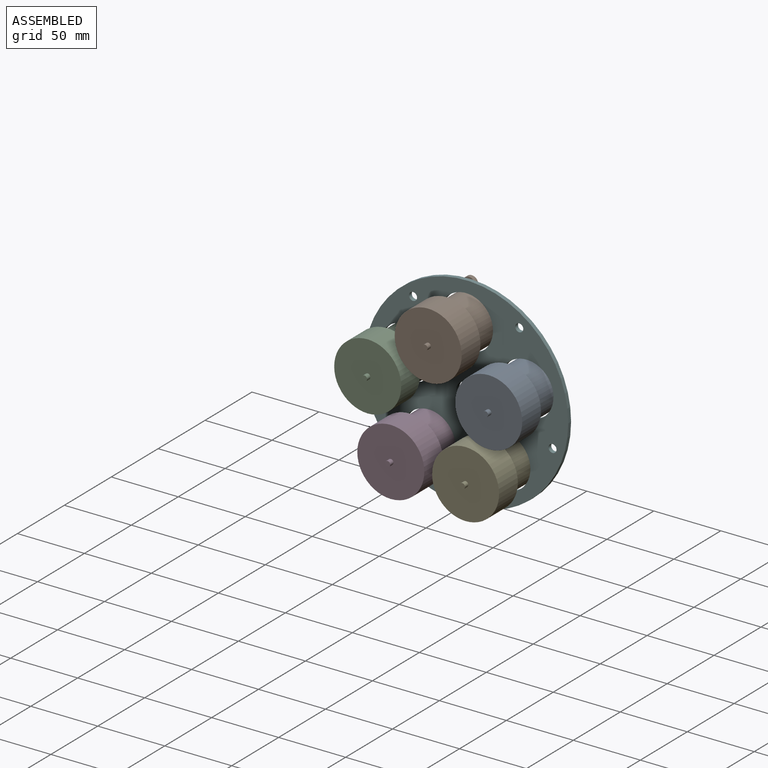
[diagram: assembled view]
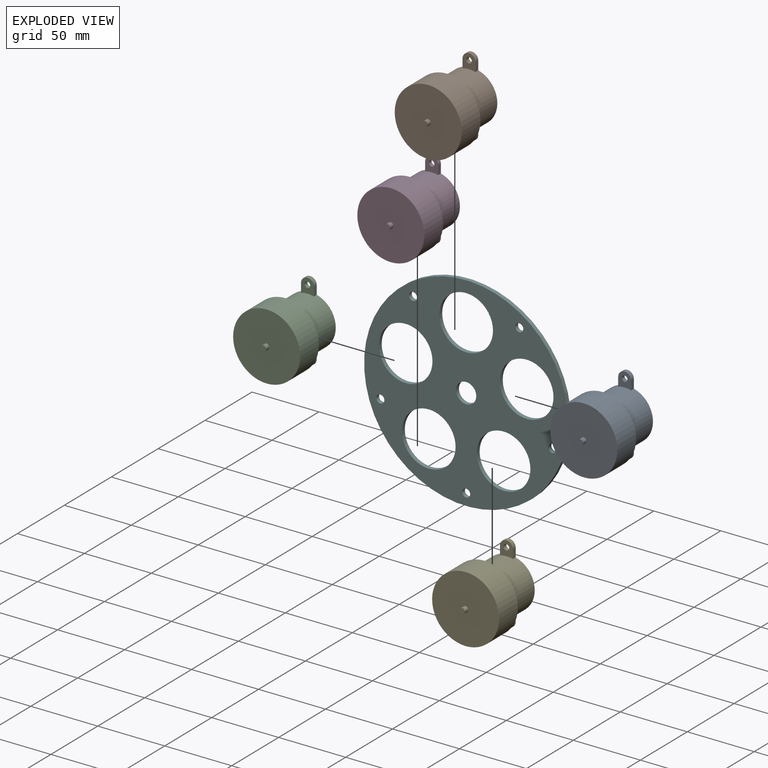
[diagram: exploded view]
GUIDED TOUR — MATED ASSEMBLY WITH SUBASSEMBLIES (Onshape document 40a3dfd7b4c5516ca7b709a6, AutoMate assembly 40a3dfd7b4c5516ca7b709a6_3e66011d5bfe8de211544632_3f967352f34683e22905f1c7_default)

This assembly has 11 component occurrences arranged in 6 top-level units: 1 individual components plus 5 subassemblies (S0, S1, S2, S3, S4). The tour has two levels: first the top level, where each subassembly is treated as one rigid unit; then each subassembly is toured internally in its own section (nesting deeper than one subassembly level is flattened into its subassembly's section).

Components are labeled P0..P10 across the whole record; subassembly units are labeled S0..S4. A mate is a constraint between two units; its type names the relative motion it leaves free:
  CYLINDRICAL — leaves both rotation about and translation along the listed axis free,
  PLANAR — leaves sliding in the plane through the listed point (normal = the listed direction) and rotation about that normal free.
Axis/direction vectors are unit vectors and 'through' points are millimeter coordinates, both in the assembly's world frame.

TOP-LEVEL MATES (between units; each subassembly's internal mates are listed in its own section)
  1. CYLINDRICAL "Cylindrical 2": S3 <-> P9, axis (0.000, 1.000, 0.000) through (-27.92, -31.50, -38.43) mm
  2. CYLINDRICAL "Cylindrical 3": S2 <-> P9, axis (0.000, 1.000, 0.000) through (-45.18, -19.00, 14.68) mm
  3. PLANAR "Planar 5": S0 <-> P9, direction (0.000, -1.000, 0.000) through (45.18, 3.00, -10.32) mm
  4. CYLINDRICAL "Cylindrical 4": S1 <-> P9, axis (0.000, 1.000, 0.000) through (0.00, -31.50, 47.50) mm
  5. PLANAR "Planar 4": P9 <-> S1, direction (0.000, 1.000, 0.000) through (0.00, 3.00, 0.00) mm
  6. CYLINDRICAL "Cylindrical 5": S0 <-> P9, axis (0.000, 1.000, 0.000) through (45.18, -31.50, 14.68) mm
  7. CYLINDRICAL "Cylindrical 1": S4 <-> P9, axis (0.000, -1.000, 0.000) through (27.92, -40.50, -38.43) mm
  8. PLANAR "Planar 2": P9 <-> S3, direction (0.000, 1.000, 0.000) through (0.00, 3.00, 0.00) mm
  9. PLANAR "Planar 1": S4 <-> P9, direction (0.000, -1.000, 0.000) through (27.92, 3.00, -13.43) mm
  10. PLANAR "Planar 3": S2 <-> P9, direction (0.000, -1.000, 0.000) through (-45.18, 3.00, -10.32) mm

TOP-LEVEL ASSEMBLY ORDER
  1. P9 — the base component [order verified]
  2. S4 [order verified]
  3. S3 [order verified]
  4. S1 [order verified]
  5. S0 [order verified]
  6. S2 [order verified]
Order-tag legend:
  [order verified] — this step's position reverses a verified removal order: the component was checked to insert without passing through the ones already placed.

Of the 11 component occurrences, 11 carry the full construction recipe — the FeatureScript program that regenerates the part's solid from scratch; the rest are supplied as boundary geometry only. Each toured unit is shown spotlighted twice — assembled, then exploded with a leader line back to its socket (green = recipe-attached component, orange = geometry-only, blue = subassembly unit; the rest desaturated gray).
NOTE — document 2 of 2 of this assembly tour. The two overview renders and the header above are repeated from document 1; the component sections below continue where the previous document stopped.
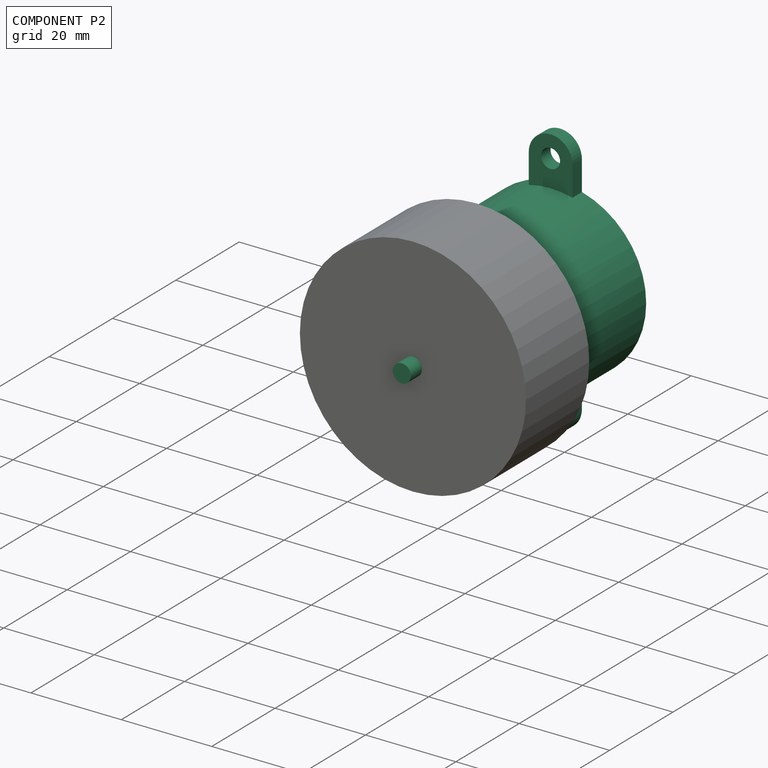
[diagram: component P2 — assembled]
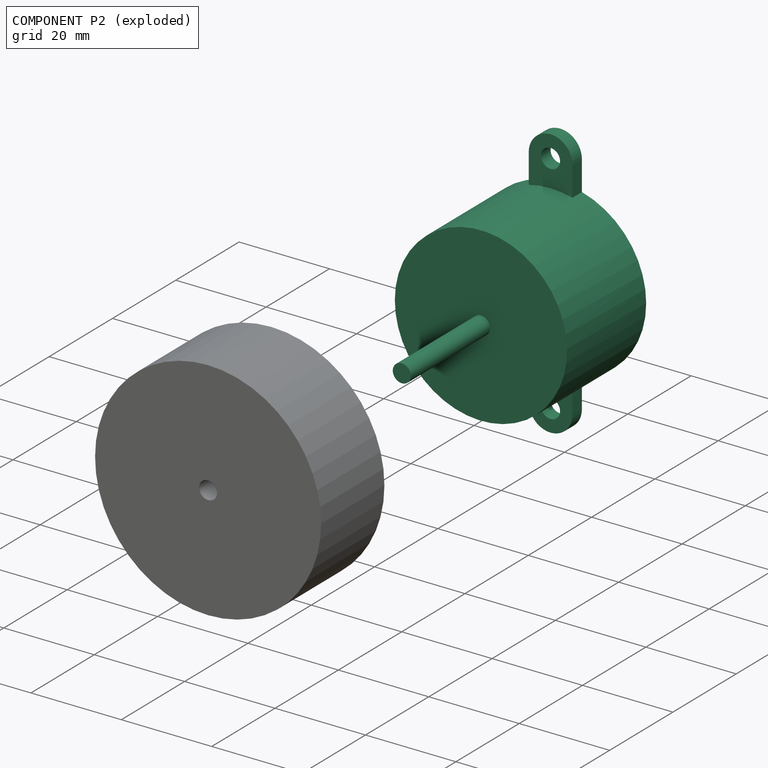
[diagram: component P2 — exploded]
COMPONENT P2 — recipe-attached (CADFS 00167948, mesh-verified: the recipe's output STEP matches this component's geometry to below the mesh-comparison resolution (tessellation chordal tolerance ~0.13 mm)).
Held by: CYLINDRICAL mate "Cylindrical 1" to P4; PLANAR mate "Planar 1" to P4; CYLINDRICAL mate "Cylindrical 1" to P4; PLANAR mate "Planar 1" to P4.
Construction recipe (FeatureScript — the CAD program that rebuilds this solid; sketch coordinates are in the units given by the * unit suffixes, e.g. mm):

FeatureScript 1511;
import(path : "onshape/std/geometry.fs", version : "1511.0");
import(path : "onshape/std/common.fs", version : "1511.0");
const mm = millimeter;
const VERTEX = EntityType.VERTEX;
const EDGE = EntityType.EDGE;
const FACE = EntityType.FACE;
const BODY = EntityType.BODY;
function v(x, y){return vector(x, y);}
function OD(order){return orderDisambiguation(order);}
function OSD(set){return originalSetDisambiguation(set);}
function TD(topology){return topologyDisambiguation(topology);}
function TDD(query){return trueDependencyDisambiguation(query);}
function sQuery(a, b, c) {return sketchEntityQuery(a, b, c);}

annotation { "Feature Type Name" : "Feature", "Feature Type Description" : "" }
export const myFeature = defineFeature(function(context is Context, id is Id, definition is map)
    precondition{}
    {
        {
            var Q0;
            Q0=qCreatedBy(makeId("Front.planeOp"),FACE);
            cPlane(context, id + "F0", {"entities" : qUnion([Q0]), "cplaneType" : CPlaneType.OFFSET, "offset" : 0 * mm, "width" : 150 * mm, "height" : 150 * mm});
        }
        {
            var Q0;
            Q0=qCreatedBy(id+"F0.planeOp",FACE);
            var sketch = newSketch(context, id + "F1", { "sketchPlane" : qUnion([Q0])});
            skCircle(sketch, "E0", {"center": v(0, 0) * mm, "radius": 19.05 * mm});
            skSolve(sketch);
        }
        {
            var Q0;
            Q0 = qSketchRegion(id + "F1", true);
            extrude(context, id + "F2", {"entities" : qUnion([Q0]), "depth" : 25 * mm});
        }
        {
            var Q0;
            Q0=qCreatedBy(id+"F0.planeOp",FACE);
            var sketch = newSketch(context, id + "F3", { "sketchPlane" : qUnion([Q0])});
            skLineSegment(sketch, "E1", {"start": v(0, 55.28) * mm, "end": v(0, -53.48) * mm, "construction": true});
            skLineSegment(sketch, "E2", {"start": v(-52.41, 0) * mm, "end": v(61.28, 0) * mm, "construction": true});
            skCircle(sketch, "E3", {"center": v(0, 25) * mm, "radius": 2.1 * mm});
            skLineSegment(sketch, "E4.left", {"start": v(-4.83, 25) * mm, "end": v(-4.83, 18.43) * mm});
            skLineSegment(sketch, "E4.right", {"start": v(4.83, 25) * mm, "end": v(4.83, 18.43) * mm});
            skArc(sketch, "E5", {"start": v(4.83, 25) * mm, "mid": v(0, 29.83) * mm, "end": v(-4.83, 25) * mm});
            skArc(sketch, "E6.trimOffspring", {"start": v(4.83, 18.43) * mm, "mid": v(0, 19.05) * mm, "end": v(-4.83, 18.43) * mm});
            skCircle(sketch, "E7.MirrorC", {"center": v(0, -25) * mm, "radius": 2.1 * mm});
            skLineSegment(sketch, "E8.MirrorCS", {"start": v(4.83, -25) * mm, "end": v(4.83, -18.43) * mm});
            skLineSegment(sketch, "E9.MirrorCS", {"start": v(-4.83, -25) * mm, "end": v(-4.83, -18.43) * mm});
            skArc(sketch, "E10.MirrorCS", {"start": v(4.83, -25) * mm, "mid": v(0, -29.83) * mm, "end": v(-4.83, -25) * mm});
            skArc(sketch, "E11.MirrorCS", {"start": v(4.83, -18.43) * mm, "mid": v(0, -19.05) * mm, "end": v(-4.83, -18.43) * mm});
            skSolve(sketch);
        }
        {
            var Q0;
            Q0 = qSketchRegion(id + "F3", true);
            extrude(context, id + "F4", {"entities" : qUnion([Q0]), "operationType" : NewBodyOperationType.ADD, "depth" : 3 * mm});
        }
        {
            var Q0;
            Q0=makeQuery(id+"F2.opExtrude","CAP_FACE",FACE,{"disambiguationData":[OSD([sQuery(id+"F1.wireOp",EDGE,"E0")])],"isStart":false});
            var sketch = newSketch(context, id + "F5", { "sketchPlane" : qUnion([Q0])});
            skCircle(sketch, "E12", {"center": v(0, 0) * mm, "radius": 2 * mm});
            skSolve(sketch);
        }
        {
            var Q0;
            Q0 = qSketchRegion(id + "F5", true);
            extrude(context, id + "F6", {"entities" : qUnion([Q0]), "operationType" : NewBodyOperationType.ADD, "depth" : 25 * mm});
        }
    });
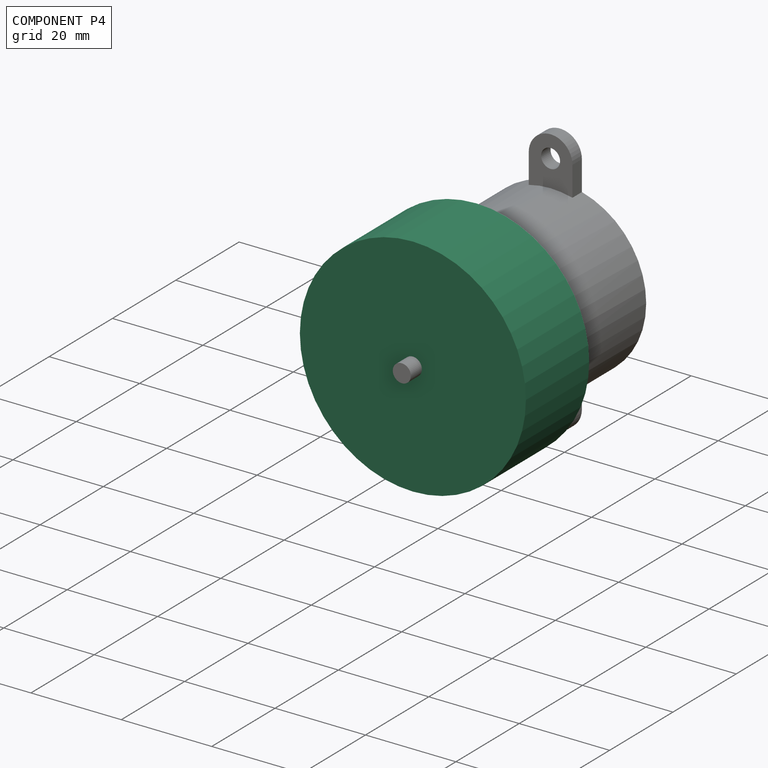
[diagram: component P4 — assembled]
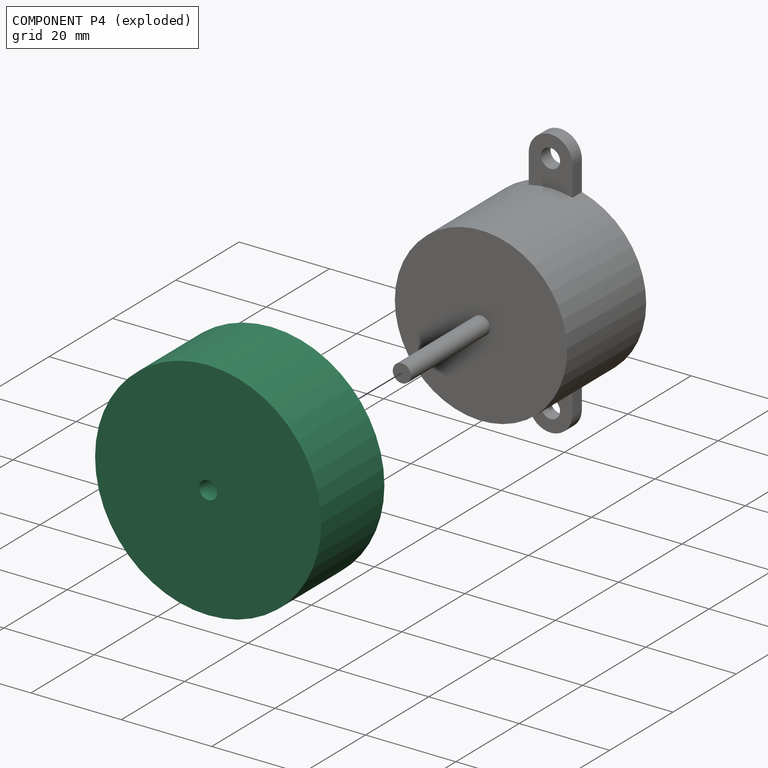
[diagram: component P4 — exploded]
COMPONENT P4 — recipe-attached (CADFS 00167949, mesh-verified: the recipe's output STEP matches this component's geometry to below the mesh-comparison resolution (tessellation chordal tolerance ~0.11 mm)).
Held by: CYLINDRICAL mate "Cylindrical 1" to P2; PLANAR mate "Planar 1" to P2; CYLINDRICAL mate "Cylindrical 1" to P2; PLANAR mate "Planar 1" to P2.
Construction recipe (FeatureScript — the CAD program that rebuilds this solid; sketch coordinates are in the units given by the * unit suffixes, e.g. mm):

FeatureScript 1511;
import(path : "onshape/std/geometry.fs", version : "1511.0");
import(path : "onshape/std/common.fs", version : "1511.0");
const mm = millimeter;
const VERTEX = EntityType.VERTEX;
const EDGE = EntityType.EDGE;
const FACE = EntityType.FACE;
const BODY = EntityType.BODY;
function v(x, y){return vector(x, y);}
function OD(order){return orderDisambiguation(order);}
function OSD(set){return originalSetDisambiguation(set);}
function TD(topology){return topologyDisambiguation(topology);}
function TDD(query){return trueDependencyDisambiguation(query);}
function sQuery(a, b, c) {return sketchEntityQuery(a, b, c);}

annotation { "Feature Type Name" : "Feature", "Feature Type Description" : "" }
export const myFeature = defineFeature(function(context is Context, id is Id, definition is map)
    precondition{}
    {
        {
            var Q0;
            Q0=qCreatedBy(makeId("Front.planeOp"),FACE);
            cPlane(context, id + "F0", {"entities" : qUnion([Q0]), "cplaneType" : CPlaneType.OFFSET, "offset" : 0 * mm, "width" : 150 * mm, "height" : 150 * mm});
        }
        {
            var Q0;
            Q0=qCreatedBy(id+"F0.planeOp",FACE);
            var sketch = newSketch(context, id + "F1", { "sketchPlane" : qUnion([Q0])});
            skCircle(sketch, "E0", {"center": v(0, 0) * mm, "radius": 25 * mm});
            skSolve(sketch);
        }
        {
            var Q0;
            Q0 = qSketchRegion(id + "F1", true);
            extrude(context, id + "F2", {"entities" : qUnion([Q0]), "endBound" : BoundingType.SYMMETRIC, "depth" : 20 * mm});
        }
        {
            var Q0;
            Q0=qCreatedBy(makeId("Front.planeOp"),FACE);
            var sketch = newSketch(context, id + "F3", { "sketchPlane" : qUnion([Q0])});
            skCircle(sketch, "E1", {"center": v(0, 0) * mm, "radius": 1.98 * mm});
            skSolve(sketch);
        }
        {
            var Q0;
            Q0 = qSketchRegion(id + "F3", true);
            extrude(context, id + "F4", {"entities" : qUnion([Q0]), "operationType" : NewBodyOperationType.REMOVE, "endBound" : BoundingType.SYMMETRIC, "depth" : 100 * mm});
        }
    });
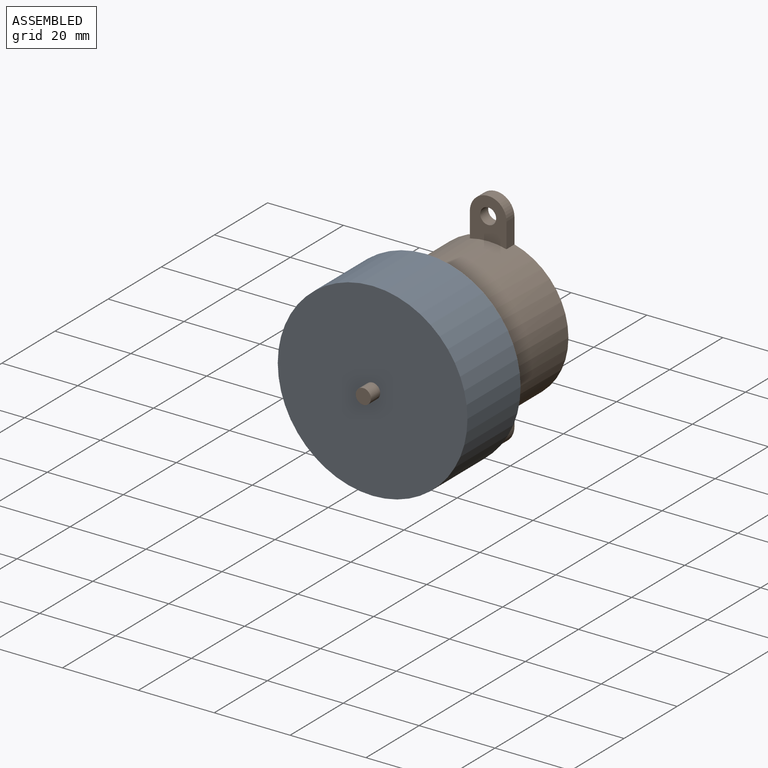
[diagram: subassembly S3 — assembled view]
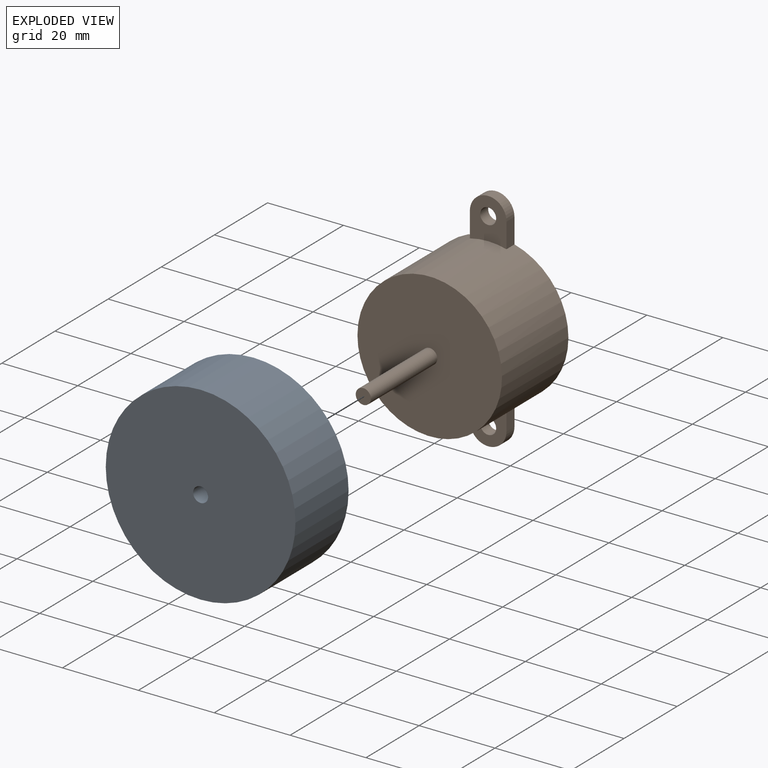
[diagram: subassembly S3 — exploded view]
SUBASSEMBLY S3 TOUR — 2 components, shown here in isolation at its own camera.

INTERNAL MATES
  1. CYLINDRICAL "Cylindrical 1": P6 <-> P8, axis (0.000, -1.000, 0.000) through (-27.92, -40.50, -38.43) mm
  2. PLANAR "Planar 1": P6 <-> P8, direction (0.000, 1.000, 0.000) through (-27.92, -20.50, -38.43) mm
  3. CYLINDRICAL "Cylindrical 1": P6 <-> P8, axis (0.000, -1.000, 0.000) through (-27.92, -40.50, -38.43) mm
  4. PLANAR "Planar 1": P6 <-> P8, direction (0.000, 1.000, 0.000) through (-27.92, -20.50, -38.43) mm

ASSEMBLY ORDER (within the subassembly)
  1. P8 — the base component [order verified]
  2. P6 [order verified]
Order-tag legend:
  [order verified] — this step's position reverses a verified removal order: the component was checked to insert without passing through the ones already placed.
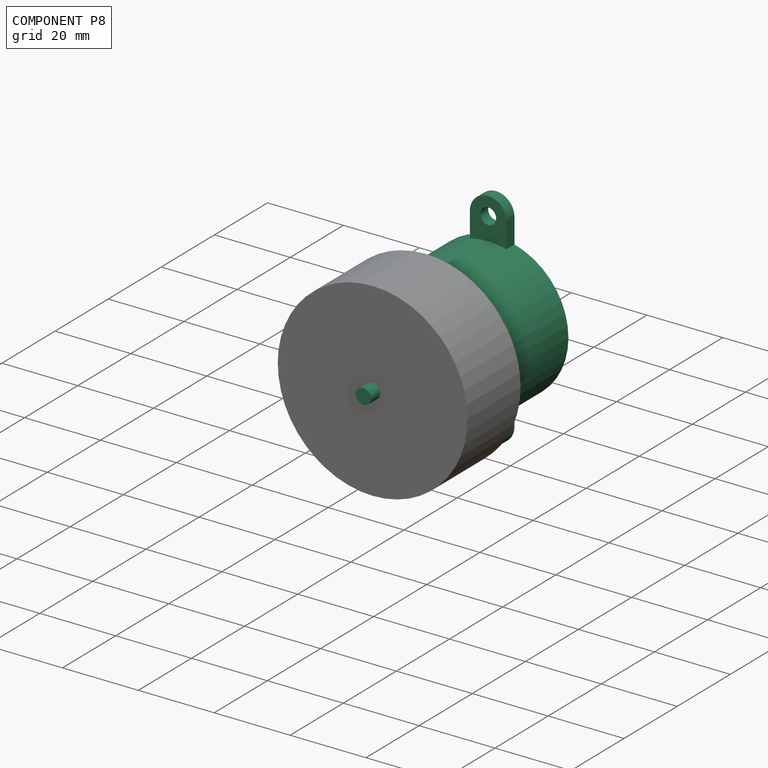
[diagram: component P8 — assembled]
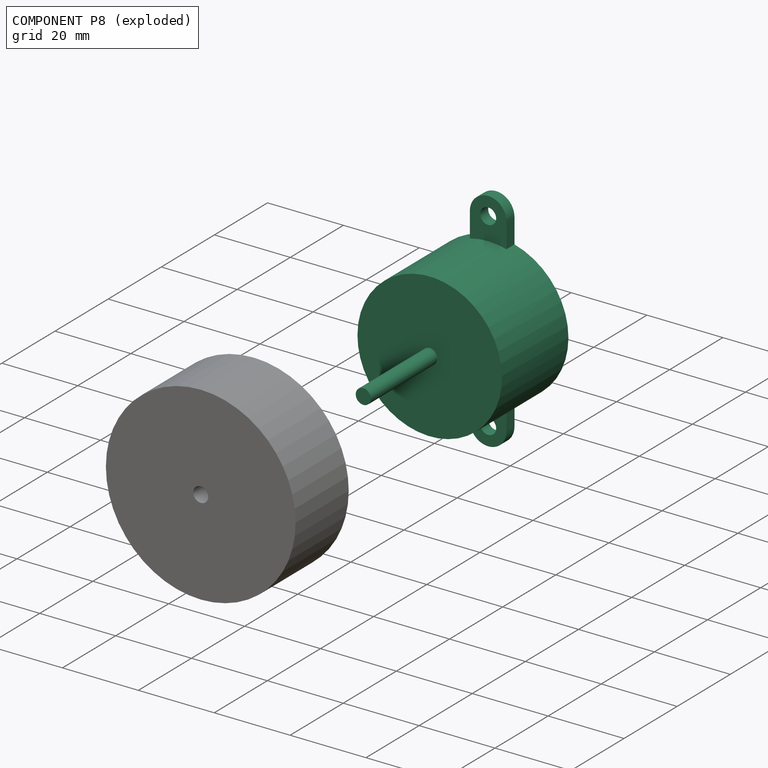
[diagram: component P8 — exploded]
COMPONENT P8 — recipe-attached (CADFS 00167948, mesh-verified: the recipe's output STEP matches this component's geometry to below the mesh-comparison resolution (tessellation chordal tolerance ~0.13 mm)).
Held by: CYLINDRICAL mate "Cylindrical 1" to P6; PLANAR mate "Planar 1" to P6; CYLINDRICAL mate "Cylindrical 1" to P6; PLANAR mate "Planar 1" to P6.
Construction recipe (FeatureScript — the CAD program that rebuilds this solid; sketch coordinates are in the units given by the * unit suffixes, e.g. mm):

FeatureScript 1511;
import(path : "onshape/std/geometry.fs", version : "1511.0");
import(path : "onshape/std/common.fs", version : "1511.0");
const mm = millimeter;
const VERTEX = EntityType.VERTEX;
const EDGE = EntityType.EDGE;
const FACE = EntityType.FACE;
const BODY = EntityType.BODY;
function v(x, y){return vector(x, y);}
function OD(order){return orderDisambiguation(order);}
function OSD(set){return originalSetDisambiguation(set);}
function TD(topology){return topologyDisambiguation(topology);}
function TDD(query){return trueDependencyDisambiguation(query);}
function sQuery(a, b, c) {return sketchEntityQuery(a, b, c);}

annotation { "Feature Type Name" : "Feature", "Feature Type Description" : "" }
export const myFeature = defineFeature(function(context is Context, id is Id, definition is map)
    precondition{}
    {
        {
            var Q0;
            Q0=qCreatedBy(makeId("Front.planeOp"),FACE);
            cPlane(context, id + "F0", {"entities" : qUnion([Q0]), "cplaneType" : CPlaneType.OFFSET, "offset" : 0 * mm, "width" : 150 * mm, "height" : 150 * mm});
        }
        {
            var Q0;
            Q0=qCreatedBy(id+"F0.planeOp",FACE);
            var sketch = newSketch(context, id + "F1", { "sketchPlane" : qUnion([Q0])});
            skCircle(sketch, "E0", {"center": v(0, 0) * mm, "radius": 19.05 * mm});
            skSolve(sketch);
        }
        {
            var Q0;
            Q0 = qSketchRegion(id + "F1", true);
            extrude(context, id + "F2", {"entities" : qUnion([Q0]), "depth" : 25 * mm});
        }
        {
            var Q0;
            Q0=qCreatedBy(id+"F0.planeOp",FACE);
            var sketch = newSketch(context, id + "F3", { "sketchPlane" : qUnion([Q0])});
            skLineSegment(sketch, "E1", {"start": v(0, 55.28) * mm, "end": v(0, -53.48) * mm, "construction": true});
            skLineSegment(sketch, "E2", {"start": v(-52.41, 0) * mm, "end": v(61.28, 0) * mm, "construction": true});
            skCircle(sketch, "E3", {"center": v(0, 25) * mm, "radius": 2.1 * mm});
            skLineSegment(sketch, "E4.left", {"start": v(-4.83, 25) * mm, "end": v(-4.83, 18.43) * mm});
            skLineSegment(sketch, "E4.right", {"start": v(4.83, 25) * mm, "end": v(4.83, 18.43) * mm});
            skArc(sketch, "E5", {"start": v(4.83, 25) * mm, "mid": v(0, 29.83) * mm, "end": v(-4.83, 25) * mm});
            skArc(sketch, "E6.trimOffspring", {"start": v(4.83, 18.43) * mm, "mid": v(0, 19.05) * mm, "end": v(-4.83, 18.43) * mm});
            skCircle(sketch, "E7.MirrorC", {"center": v(0, -25) * mm, "radius": 2.1 * mm});
            skLineSegment(sketch, "E8.MirrorCS", {"start": v(4.83, -25) * mm, "end": v(4.83, -18.43) * mm});
            skLineSegment(sketch, "E9.MirrorCS", {"start": v(-4.83, -25) * mm, "end": v(-4.83, -18.43) * mm});
            skArc(sketch, "E10.MirrorCS", {"start": v(4.83, -25) * mm, "mid": v(0, -29.83) * mm, "end": v(-4.83, -25) * mm});
            skArc(sketch, "E11.MirrorCS", {"start": v(4.83, -18.43) * mm, "mid": v(0, -19.05) * mm, "end": v(-4.83, -18.43) * mm});
            skSolve(sketch);
        }
        {
            var Q0;
            Q0 = qSketchRegion(id + "F3", true);
            extrude(context, id + "F4", {"entities" : qUnion([Q0]), "operationType" : NewBodyOperationType.ADD, "depth" : 3 * mm});
        }
        {
            var Q0;
            Q0=makeQuery(id+"F2.opExtrude","CAP_FACE",FACE,{"disambiguationData":[OSD([sQuery(id+"F1.wireOp",EDGE,"E0")])],"isStart":false});
            var sketch = newSketch(context, id + "F5", { "sketchPlane" : qUnion([Q0])});
            skCircle(sketch, "E12", {"center": v(0, 0) * mm, "radius": 2 * mm});
            skSolve(sketch);
        }
        {
            var Q0;
            Q0 = qSketchRegion(id + "F5", true);
            extrude(context, id + "F6", {"entities" : qUnion([Q0]), "operationType" : NewBodyOperationType.ADD, "depth" : 25 * mm});
        }
    });
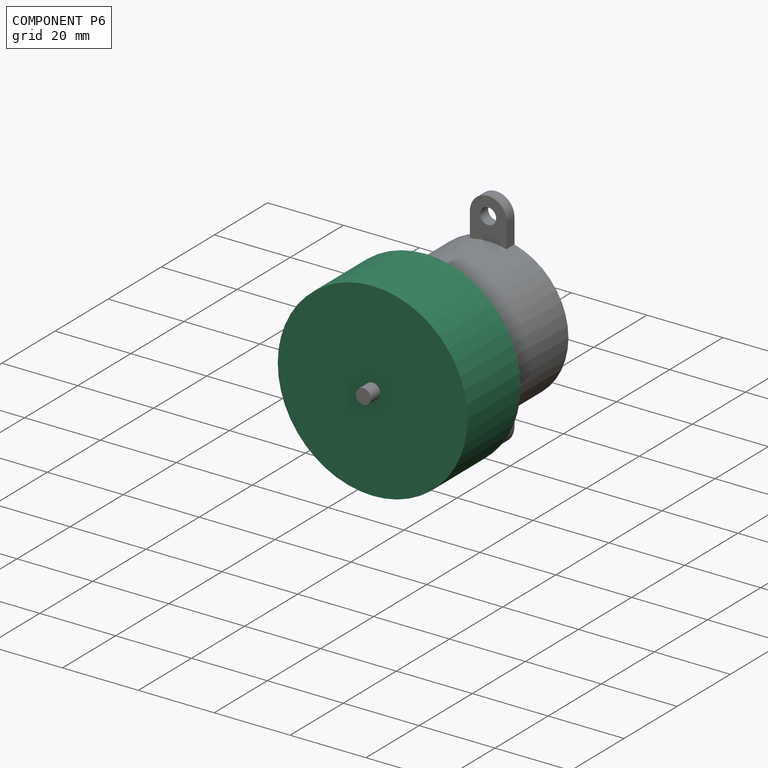
[diagram: component P6 — assembled]
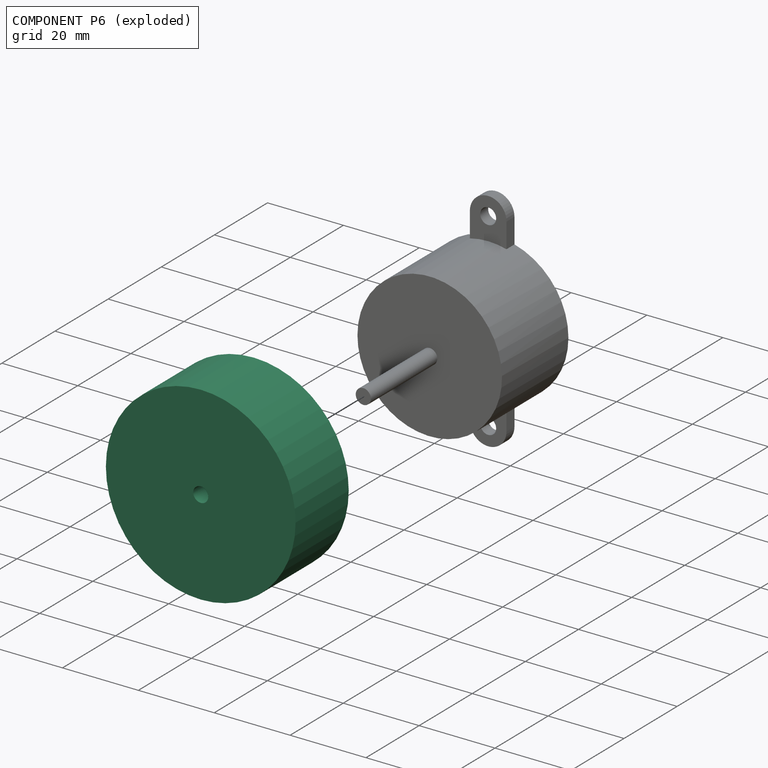
[diagram: component P6 — exploded]
COMPONENT P6 — recipe-attached (CADFS 00167949, mesh-verified: the recipe's output STEP matches this component's geometry to below the mesh-comparison resolution (tessellation chordal tolerance ~0.11 mm)).
Held by: CYLINDRICAL mate "Cylindrical 1" to P8; PLANAR mate "Planar 1" to P8; CYLINDRICAL mate "Cylindrical 1" to P8; PLANAR mate "Planar 1" to P8.
Construction recipe (FeatureScript — the CAD program that rebuilds this solid; sketch coordinates are in the units given by the * unit suffixes, e.g. mm):

FeatureScript 1511;
import(path : "onshape/std/geometry.fs", version : "1511.0");
import(path : "onshape/std/common.fs", version : "1511.0");
const mm = millimeter;
const VERTEX = EntityType.VERTEX;
const EDGE = EntityType.EDGE;
const FACE = EntityType.FACE;
const BODY = EntityType.BODY;
function v(x, y){return vector(x, y);}
function OD(order){return orderDisambiguation(order);}
function OSD(set){return originalSetDisambiguation(set);}
function TD(topology){return topologyDisambiguation(topology);}
function TDD(query){return trueDependencyDisambiguation(query);}
function sQuery(a, b, c) {return sketchEntityQuery(a, b, c);}

annotation { "Feature Type Name" : "Feature", "Feature Type Description" : "" }
export const myFeature = defineFeature(function(context is Context, id is Id, definition is map)
    precondition{}
    {
        {
            var Q0;
            Q0=qCreatedBy(makeId("Front.planeOp"),FACE);
            cPlane(context, id + "F0", {"entities" : qUnion([Q0]), "cplaneType" : CPlaneType.OFFSET, "offset" : 0 * mm, "width" : 150 * mm, "height" : 150 * mm});
        }
        {
            var Q0;
            Q0=qCreatedBy(id+"F0.planeOp",FACE);
            var sketch = newSketch(context, id + "F1", { "sketchPlane" : qUnion([Q0])});
            skCircle(sketch, "E0", {"center": v(0, 0) * mm, "radius": 25 * mm});
            skSolve(sketch);
        }
        {
            var Q0;
            Q0 = qSketchRegion(id + "F1", true);
            extrude(context, id + "F2", {"entities" : qUnion([Q0]), "endBound" : BoundingType.SYMMETRIC, "depth" : 20 * mm});
        }
        {
            var Q0;
            Q0=qCreatedBy(makeId("Front.planeOp"),FACE);
            var sketch = newSketch(context, id + "F3", { "sketchPlane" : qUnion([Q0])});
            skCircle(sketch, "E1", {"center": v(0, 0) * mm, "radius": 1.98 * mm});
            skSolve(sketch);
        }
        {
            var Q0;
            Q0 = qSketchRegion(id + "F3", true);
            extrude(context, id + "F4", {"entities" : qUnion([Q0]), "operationType" : NewBodyOperationType.REMOVE, "endBound" : BoundingType.SYMMETRIC, "depth" : 100 * mm});
        }
    });
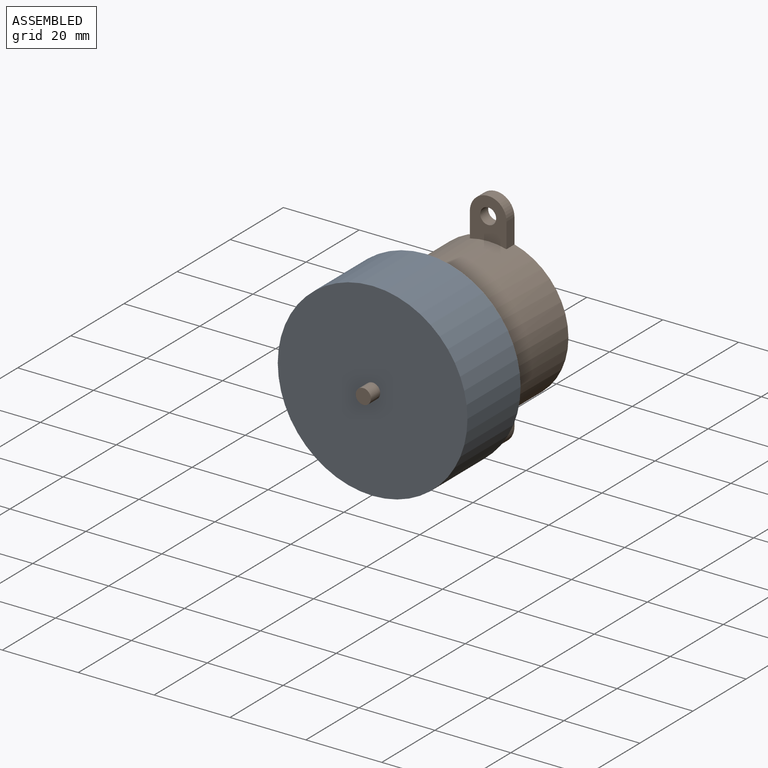
[diagram: subassembly S4 — assembled view]
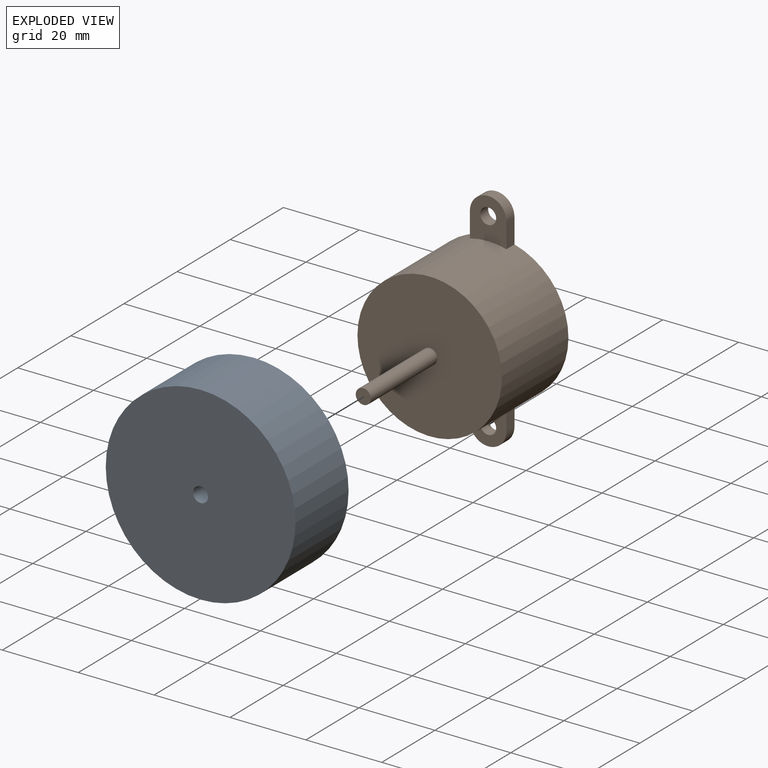
[diagram: subassembly S4 — exploded view]
SUBASSEMBLY S4 TOUR — 2 components, shown here in isolation at its own camera.

INTERNAL MATES
  1. CYLINDRICAL "Cylindrical 1": P7 <-> P10, axis (0.000, -1.000, 0.000) through (27.92, -40.50, -38.43) mm
  2. PLANAR "Planar 1": P7 <-> P10, direction (0.000, 1.000, 0.000) through (27.92, -20.50, -38.43) mm
  3. CYLINDRICAL "Cylindrical 1": P7 <-> P10, axis (0.000, -1.000, 0.000) through (27.92, -40.50, -38.43) mm
  4. PLANAR "Planar 1": P7 <-> P10, direction (0.000, 1.000, 0.000) through (27.92, -20.50, -38.43) mm

ASSEMBLY ORDER (within the subassembly)
  1. P10 — the base component [order verified]
  2. P7 [order verified]
Order-tag legend:
  [order verified] — this step's position reverses a verified removal order: the component was checked to insert without passing through the ones already placed.
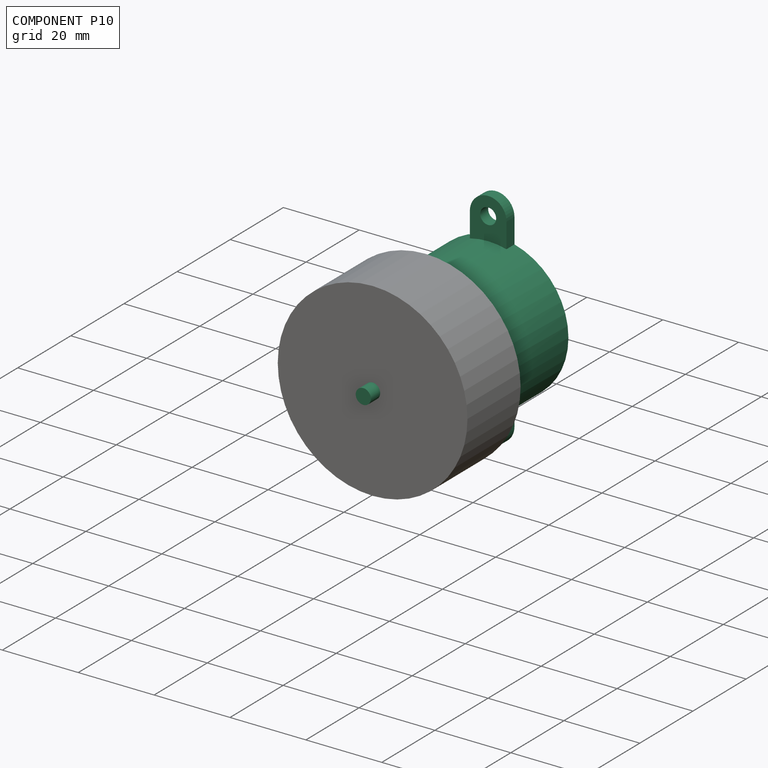
[diagram: component P10 — assembled]
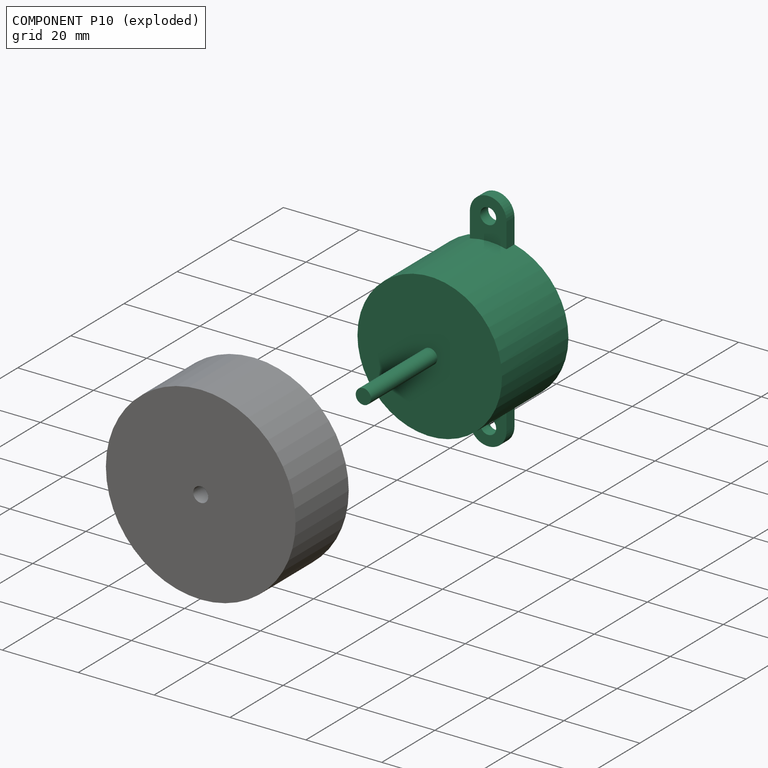
[diagram: component P10 — exploded]
COMPONENT P10 — recipe-attached (CADFS 00167948, mesh-verified: the recipe's output STEP matches this component's geometry to below the mesh-comparison resolution (tessellation chordal tolerance ~0.13 mm)).
Held by: CYLINDRICAL mate "Cylindrical 1" to P7; PLANAR mate "Planar 1" to P7; CYLINDRICAL mate "Cylindrical 1" to P7; PLANAR mate "Planar 1" to P7.
Construction recipe (FeatureScript — the CAD program that rebuilds this solid; sketch coordinates are in the units given by the * unit suffixes, e.g. mm):

FeatureScript 1511;
import(path : "onshape/std/geometry.fs", version : "1511.0");
import(path : "onshape/std/common.fs", version : "1511.0");
const mm = millimeter;
const VERTEX = EntityType.VERTEX;
const EDGE = EntityType.EDGE;
const FACE = EntityType.FACE;
const BODY = EntityType.BODY;
function v(x, y){return vector(x, y);}
function OD(order){return orderDisambiguation(order);}
function OSD(set){return originalSetDisambiguation(set);}
function TD(topology){return topologyDisambiguation(topology);}
function TDD(query){return trueDependencyDisambiguation(query);}
function sQuery(a, b, c) {return sketchEntityQuery(a, b, c);}

annotation { "Feature Type Name" : "Feature", "Feature Type Description" : "" }
export const myFeature = defineFeature(function(context is Context, id is Id, definition is map)
    precondition{}
    {
        {
            var Q0;
            Q0=qCreatedBy(makeId("Front.planeOp"),FACE);
            cPlane(context, id + "F0", {"entities" : qUnion([Q0]), "cplaneType" : CPlaneType.OFFSET, "offset" : 0 * mm, "width" : 150 * mm, "height" : 150 * mm});
        }
        {
            var Q0;
            Q0=qCreatedBy(id+"F0.planeOp",FACE);
            var sketch = newSketch(context, id + "F1", { "sketchPlane" : qUnion([Q0])});
            skCircle(sketch, "E0", {"center": v(0, 0) * mm, "radius": 19.05 * mm});
            skSolve(sketch);
        }
        {
            var Q0;
            Q0 = qSketchRegion(id + "F1", true);
            extrude(context, id + "F2", {"entities" : qUnion([Q0]), "depth" : 25 * mm});
        }
        {
            var Q0;
            Q0=qCreatedBy(id+"F0.planeOp",FACE);
            var sketch = newSketch(context, id + "F3", { "sketchPlane" : qUnion([Q0])});
            skLineSegment(sketch, "E1", {"start": v(0, 55.28) * mm, "end": v(0, -53.48) * mm, "construction": true});
            skLineSegment(sketch, "E2", {"start": v(-52.41, 0) * mm, "end": v(61.28, 0) * mm, "construction": true});
            skCircle(sketch, "E3", {"center": v(0, 25) * mm, "radius": 2.1 * mm});
            skLineSegment(sketch, "E4.left", {"start": v(-4.83, 25) * mm, "end": v(-4.83, 18.43) * mm});
            skLineSegment(sketch, "E4.right", {"start": v(4.83, 25) * mm, "end": v(4.83, 18.43) * mm});
            skArc(sketch, "E5", {"start": v(4.83, 25) * mm, "mid": v(0, 29.83) * mm, "end": v(-4.83, 25) * mm});
            skArc(sketch, "E6.trimOffspring", {"start": v(4.83, 18.43) * mm, "mid": v(0, 19.05) * mm, "end": v(-4.83, 18.43) * mm});
            skCircle(sketch, "E7.MirrorC", {"center": v(0, -25) * mm, "radius": 2.1 * mm});
            skLineSegment(sketch, "E8.MirrorCS", {"start": v(4.83, -25) * mm, "end": v(4.83, -18.43) * mm});
            skLineSegment(sketch, "E9.MirrorCS", {"start": v(-4.83, -25) * mm, "end": v(-4.83, -18.43) * mm});
            skArc(sketch, "E10.MirrorCS", {"start": v(4.83, -25) * mm, "mid": v(0, -29.83) * mm, "end": v(-4.83, -25) * mm});
            skArc(sketch, "E11.MirrorCS", {"start": v(4.83, -18.43) * mm, "mid": v(0, -19.05) * mm, "end": v(-4.83, -18.43) * mm});
            skSolve(sketch);
        }
        {
            var Q0;
            Q0 = qSketchRegion(id + "F3", true);
            extrude(context, id + "F4", {"entities" : qUnion([Q0]), "operationType" : NewBodyOperationType.ADD, "depth" : 3 * mm});
        }
        {
            var Q0;
            Q0=makeQuery(id+"F2.opExtrude","CAP_FACE",FACE,{"disambiguationData":[OSD([sQuery(id+"F1.wireOp",EDGE,"E0")])],"isStart":false});
            var sketch = newSketch(context, id + "F5", { "sketchPlane" : qUnion([Q0])});
            skCircle(sketch, "E12", {"center": v(0, 0) * mm, "radius": 2 * mm});
            skSolve(sketch);
        }
        {
            var Q0;
            Q0 = qSketchRegion(id + "F5", true);
            extrude(context, id + "F6", {"entities" : qUnion([Q0]), "operationType" : NewBodyOperationType.ADD, "depth" : 25 * mm});
        }
    });
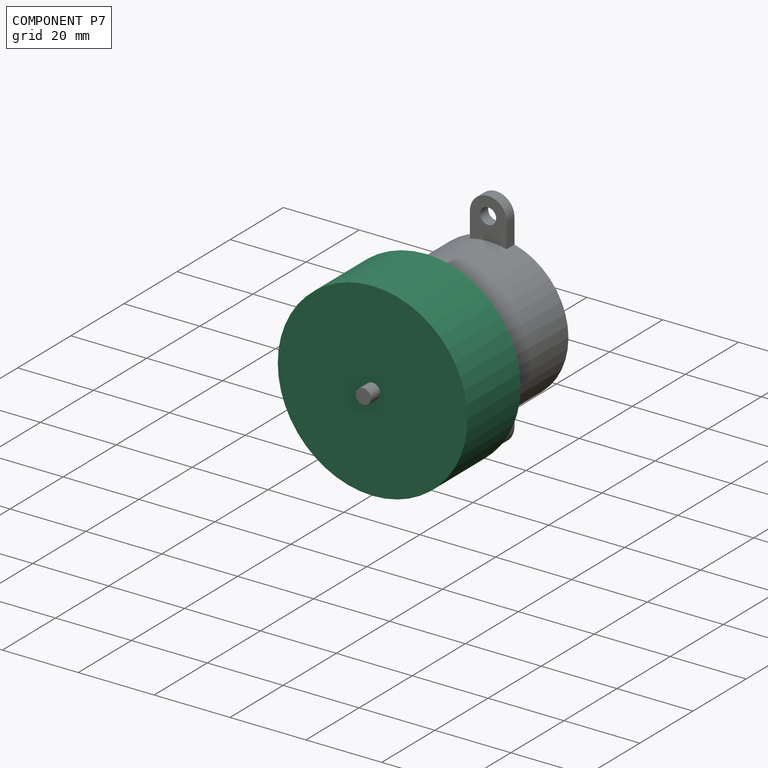
[diagram: component P7 — assembled]
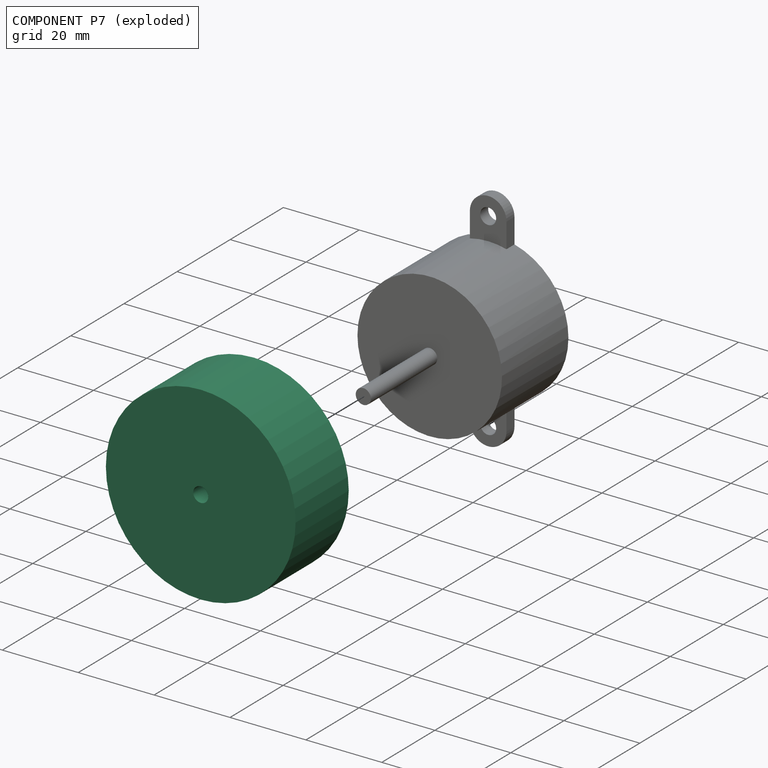
[diagram: component P7 — exploded]
COMPONENT P7 — recipe-attached (CADFS 00167949, mesh-verified: the recipe's output STEP matches this component's geometry to below the mesh-comparison resolution (tessellation chordal tolerance ~0.11 mm)).
Held by: CYLINDRICAL mate "Cylindrical 1" to P10; PLANAR mate "Planar 1" to P10; CYLINDRICAL mate "Cylindrical 1" to P10; PLANAR mate "Planar 1" to P10.
Construction recipe (FeatureScript — the CAD program that rebuilds this solid; sketch coordinates are in the units given by the * unit suffixes, e.g. mm):

FeatureScript 1511;
import(path : "onshape/std/geometry.fs", version : "1511.0");
import(path : "onshape/std/common.fs", version : "1511.0");
const mm = millimeter;
const VERTEX = EntityType.VERTEX;
const EDGE = EntityType.EDGE;
const FACE = EntityType.FACE;
const BODY = EntityType.BODY;
function v(x, y){return vector(x, y);}
function OD(order){return orderDisambiguation(order);}
function OSD(set){return originalSetDisambiguation(set);}
function TD(topology){return topologyDisambiguation(topology);}
function TDD(query){return trueDependencyDisambiguation(query);}
function sQuery(a, b, c) {return sketchEntityQuery(a, b, c);}

annotation { "Feature Type Name" : "Feature", "Feature Type Description" : "" }
export const myFeature = defineFeature(function(context is Context, id is Id, definition is map)
    precondition{}
    {
        {
            var Q0;
            Q0=qCreatedBy(makeId("Front.planeOp"),FACE);
            cPlane(context, id + "F0", {"entities" : qUnion([Q0]), "cplaneType" : CPlaneType.OFFSET, "offset" : 0 * mm, "width" : 150 * mm, "height" : 150 * mm});
        }
        {
            var Q0;
            Q0=qCreatedBy(id+"F0.planeOp",FACE);
            var sketch = newSketch(context, id + "F1", { "sketchPlane" : qUnion([Q0])});
            skCircle(sketch, "E0", {"center": v(0, 0) * mm, "radius": 25 * mm});
            skSolve(sketch);
        }
        {
            var Q0;
            Q0 = qSketchRegion(id + "F1", true);
            extrude(context, id + "F2", {"entities" : qUnion([Q0]), "endBound" : BoundingType.SYMMETRIC, "depth" : 20 * mm});
        }
        {
            var Q0;
            Q0=qCreatedBy(makeId("Front.planeOp"),FACE);
            var sketch = newSketch(context, id + "F3", { "sketchPlane" : qUnion([Q0])});
            skCircle(sketch, "E1", {"center": v(0, 0) * mm, "radius": 1.98 * mm});
            skSolve(sketch);
        }
        {
            var Q0;
            Q0 = qSketchRegion(id + "F3", true);
            extrude(context, id + "F4", {"entities" : qUnion([Q0]), "operationType" : NewBodyOperationType.REMOVE, "endBound" : BoundingType.SYMMETRIC, "depth" : 100 * mm});
        }
    });
PROVENANCE & LICENSES
Assembly (occurrences, transforms, mates, per-part STEP geometry): AutoMate dataset, Zenodo record 7776208, CC0.
Construction recipes: CADFS (HuggingFace VladPyatov/CADFS, CC-BY-4.0, layered over the ABC dataset), FeatureScript reconstruction programs keyed by ABC model id.
Join: ABC meta listings map ABC model id -> Onshape documentId; within a shared document, parts are matched by geometric signature (bounding-box dims + volume at 0.1% relative tolerance, exact B-rep face/solid counts).
Verification: 11 of this assembly's 11 components carry a recipe attachment, and every attachment is mesh-verified: the CADFS STEP and the AutoMate member STEP were compared as meshes in their shared local frame (symmetric sampled-point-to-mesh distance); worst across the 11 attachments: below the mesh-comparison resolution (tessellation chordal tolerance ~0.323 mm) on a 215 mm part.
Renders: orthographic iso camera (az 35 / el 25); the floor grid conveys scale (grid pitch printed in each image; no ruler). In the exploded view each component is displaced by its stored offset vector: the offsets alone carry the explosion direction (mate normal/axis signs are not orientation cues and do not encode it), and separation distances are assigned per mate-chain, not proportionally to assembly-order depth.
